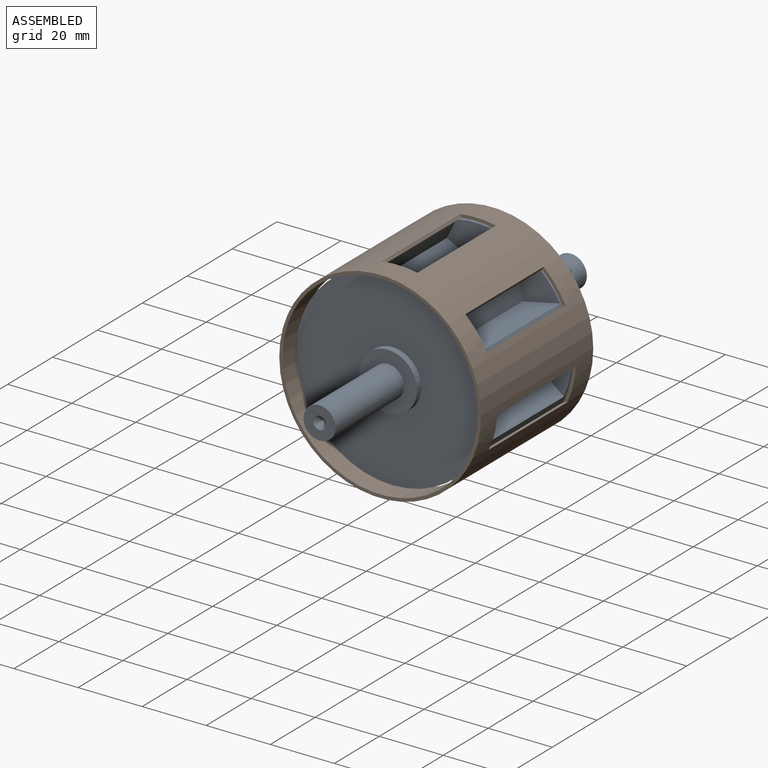
[diagram: assembled view]
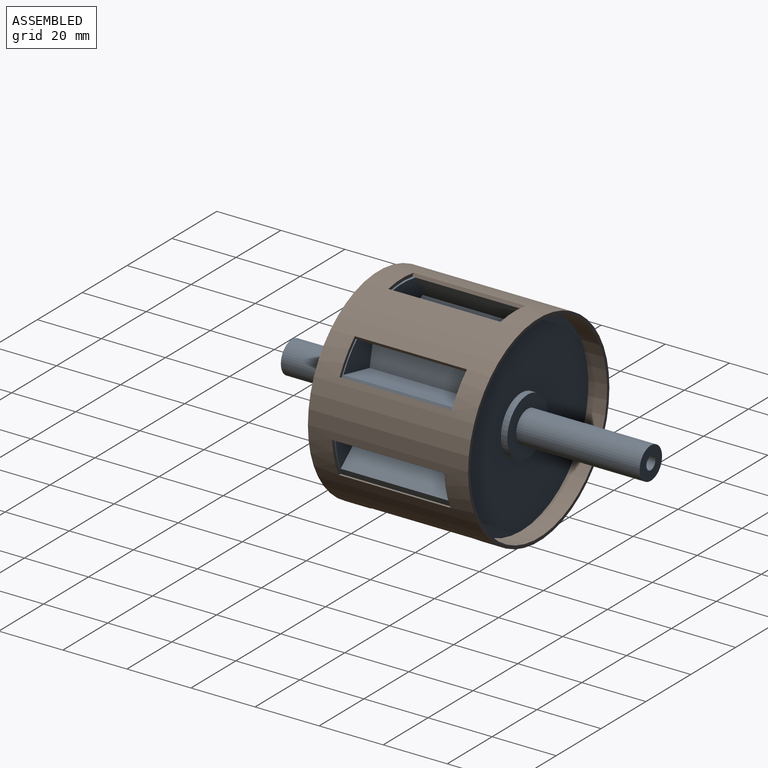
[diagram: assembled view, second angle]
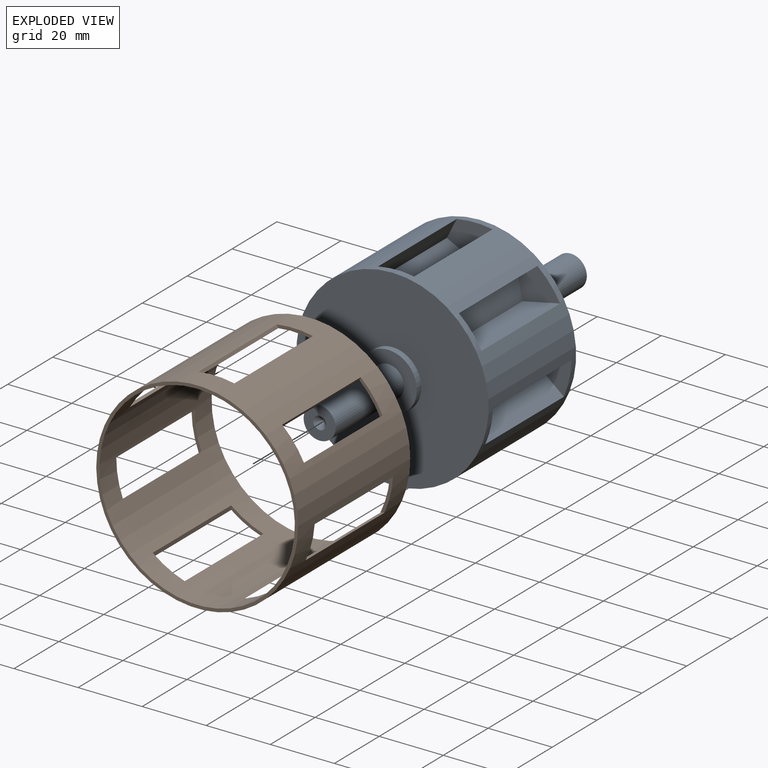
[diagram: exploded view]
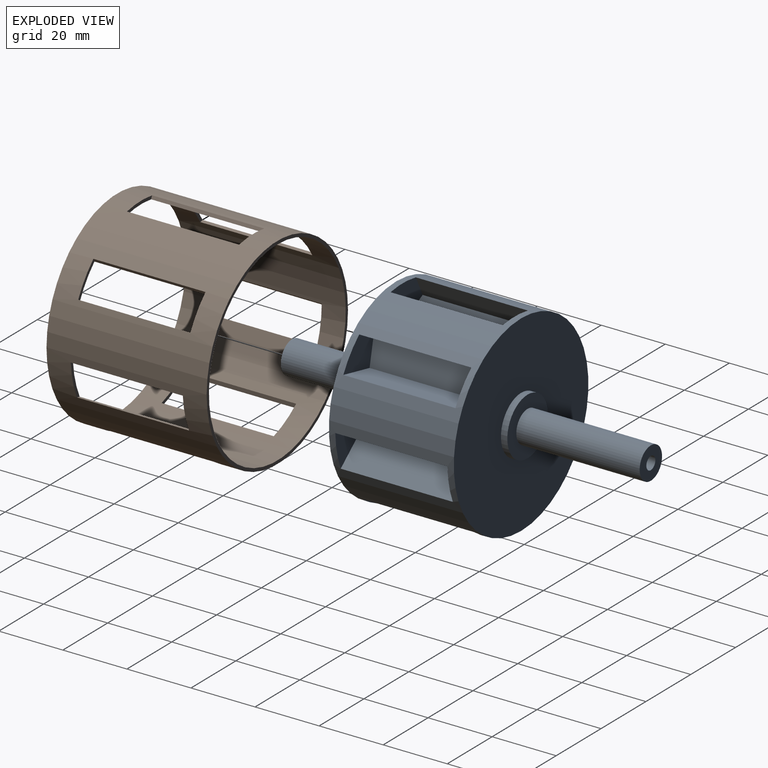
[diagram: exploded view, second angle]
ASSEMBLY  parts=2 mates=2
PART A: 49 faces, bbox 60x112x60 mm
  f0: cylinder r=30mm len=60mm, axis (0,-1,0), area 4583.3mm2, adj f6,f7,f14,f16,f17,f18,f19,f21
  f1: cylinder r=2mm len=10mm, axis (0,-1,0), area 125.7mm2, adj f2,f13
  f2: plane 10x10mm, normal (0,1,0), area 66mm2, adj f1,f3
  f3: cylinder r=5mm len=38.5mm, axis (0,-1,0), area 1209.5mm2, adj f2,f4
  f4: plane 18x18mm, normal (0,1,0), area 175.9mm2, adj f3,f5
  f5: cylinder r=9mm len=18mm, axis (0,-1,0), area 113.1mm2, adj f4,f6
  f6: plane 60x60mm, normal (0,1,0), area 2573mm2, adj f0,f5
  f7: plane 60x60mm, normal (0,-1,0), area 2573mm2, adj f0,f8
  f8: cylinder r=9mm len=18mm, axis (0,-1,0), area 113.1mm2, adj f7,f9
  f9: plane 18x18mm, normal (0,-1,0), area 175.9mm2, adj f8,f10
  f10: cylinder r=5mm len=30.5mm, axis (0,-1,0), area 958.2mm2, adj f9,f11
  f11: plane 10x10mm, normal (0,-1,0), area 66mm2, adj f10,f12
  f12: cone r=0mm half-angle=45deg, axis (0,-1,0), area 17.8mm2, adj f11
  f13: plane 4x4mm, normal (0,1,0), area 12.6mm2, adj f1
  f14: plane 14.29x11.18mm, normal (0,1,0), area 98mm2, adj f0,f15,f17,f18
  f15: plane 35x8.94mm, normal (0.45,0,0.89), area 350mm2, adj f14,f16,f17,f18
  f16: plane 14.29x11.18mm, normal (0,-1,0), area 98mm2, adj f0,f15,f17,f18
  f17: plane 35x10.7mm, normal (-0.89,0,0.45), area 418.7mm2, adj f0,f14,f15,f16
  f18: plane 35x6.13mm, normal (0.89,0,-0.45), area 239.7mm2, adj f0,f14,f15,f16
  f19: plane 15.06x11.95mm, normal (0,1,0), area 98mm2, adj f0,f20,f22,f23
  f20: plane 35x9.07mm, normal (-0.42,0,0.91), area 350mm2, adj f19,f21,f22,f23
  f21: plane 15.06x11.95mm, normal (0,-1,0), area 98mm2, adj f0,f20,f22,f23
  f22: plane 35x10.85mm, normal (-0.91,0,-0.42), area 418.7mm2, adj f0,f19,f20,f21
  f23: plane 35x6.21mm, normal (0.91,0,0.42), area 239.7mm2, adj f0,f19,f20,f21
  f24: plane 12.55x11.62mm, normal (0,1,0), area 98mm2, adj f0,f25,f27,f28
  f25: plane 35x9.72mm, normal (-0.97,0,0.24), area 350mm2, adj f24,f26,f27,f28
  f26: plane 12.55x11.62mm, normal (0,-1,0), area 98mm2, adj f0,f25,f27,f28
  f27: plane 35x11.62mm, normal (-0.24,0,-0.97), area 418.7mm2, adj f0,f24,f25,f26
  f28: plane 35x6.65mm, normal (0.24,0,0.97), area 239.7mm2, adj f0,f24,f25,f26
  f29: plane 15.58x12.1mm, normal (0,1,0), area 98mm2, adj f0,f30,f32,f33
  f30: plane 35x7.91mm, normal (-0.79,0,-0.61), area 350mm2, adj f29,f31,f32,f33
  f31: plane 15.58x12.1mm, normal (0,-1,0), area 98mm2, adj f0,f30,f32,f33
  f32: plane 35x9.46mm, normal (0.61,0,-0.79), area 418.7mm2, adj f0,f29,f30,f31
  f33: plane 35x5.42mm, normal (-0.61,0,0.79), area 239.7mm2, adj f0,f29,f30,f31
  f34: plane 11.96x10.18mm, normal (0,1,0), area 98mm2, adj f0,f35,f37,f38
  f35: plane 35x10mm, normal (-0.01,0,-1), area 350mm2, adj f34,f36,f37,f38
  f36: plane 11.96x10.18mm, normal (0,-1,0), area 98mm2, adj f0,f35,f37,f38
  f37: plane 35x11.96mm, normal (1,0,-0.01), area 418.7mm2, adj f0,f34,f35,f36
  f38: plane 35x6.85mm, normal (-1,0,0.01), area 239.7mm2, adj f0,f34,f35,f36
  f39: plane 15.32x11.64mm, normal (0,1,0), area 98mm2, adj f0,f40,f42,f43
  f40: plane 35x7.73mm, normal (0.77,0,-0.64), area 350mm2, adj f39,f41,f42,f43
  f41: plane 15.32x11.64mm, normal (0,-1,0), area 98mm2, adj f0,f40,f42,f43
  f42: plane 35x9.24mm, normal (0.64,0,0.77), area 418.7mm2, adj f0,f39,f40,f41
  f43: plane 35x5.29mm, normal (-0.64,0,-0.77), area 239.7mm2, adj f0,f39,f40,f41
  f44: plane 13.78x11.21mm, normal (0,1,0), area 98mm2, adj f0,f45,f47,f48
  f45: plane 35x9.78mm, normal (0.98,0,0.21), area 350mm2, adj f44,f46,f47,f48
  f46: plane 13.78x11.21mm, normal (0,-1,0), area 98mm2, adj f0,f45,f47,f48
  f47: plane 35x11.7mm, normal (-0.21,0,0.98), area 418.7mm2, adj f0,f44,f45,f46
  f48: plane 35x6.7mm, normal (0.21,0,-0.98), area 239.7mm2, adj f0,f44,f45,f46
PART B: 32 faces, bbox 63x63x50 mm
  f0: plane 8.94x8.31mm, normal (0,0,-1), area 11.3mm2, adj f1,f2,f24,f25
  f1: plane 35x1.02mm, normal (-0.21,0.98,0), area 36.6mm2, adj f0,f3,f24,f25
  f2: plane 35x1.24mm, normal (0.21,-0.98,0), area 44.4mm2, adj f0,f3,f24,f25
  f3: plane 8.94x8.31mm, normal (0,0,1), area 11.3mm2, adj f1,f2,f24,f25
  f4: plane 11.77x3.22mm, normal (0,0,-1), area 11.3mm2, adj f5,f6,f24,f25
  f5: plane 35x0.81mm, normal (0.64,0.77,0), area 36.6mm2, adj f4,f7,f24,f25
  f6: plane 35x0.98mm, normal (-0.64,-0.77,0), area 44.4mm2, adj f4,f7,f24,f25
  f7: plane 11.77x3.22mm, normal (0,0,1), area 11.3mm2, adj f5,f6,f24,f25
  f8: plane 10.09x6.22mm, normal (0,0,-1), area 11.3mm2, adj f9,f10,f24,f25
  f9: plane 35x1.05mm, normal (1,-0.01,0), area 36.6mm2, adj f8,f11,f24,f25
  f10: plane 35x1.27mm, normal (-1,0.01,0), area 44.4mm2, adj f8,f11,f24,f25
  f11: plane 10.09x6.22mm, normal (0,0,1), area 11.3mm2, adj f9,f10,f24,f25
  f12: plane 11.16x5.43mm, normal (0,0,-1), area 11.3mm2, adj f13,f14,f24,f25
  f13: plane 35x0.83mm, normal (0.61,-0.79,0), area 36.6mm2, adj f12,f15,f24,f25
  f14: plane 35x1mm, normal (-0.61,0.79,0), area 44.4mm2, adj f12,f15,f24,f25
  f15: plane 11.16x5.43mm, normal (0,0,1), area 11.3mm2, adj f13,f14,f24,f25
  f16: plane 11.23x3.82mm, normal (0,0,-1), area 11.3mm2, adj f17,f18,f24,f25
  f17: plane 35x1.02mm, normal (-0.24,-0.97,0), area 36.6mm2, adj f16,f19,f24,f25
  f18: plane 35x1.23mm, normal (0.24,0.97,0), area 44.4mm2, adj f16,f19,f24,f25
  f19: plane 11.23x3.82mm, normal (0,0,1), area 11.3mm2, adj f17,f18,f24,f25
  f20: plane 9.99x7.37mm, normal (0,0,-1), area 11.3mm2, adj f21,f22,f24,f25
  f21: plane 35x0.95mm, normal (-0.91,-0.42,0), area 36.6mm2, adj f20,f23,f24,f25
  f22: plane 35x1.15mm, normal (0.91,0.42,0), area 44.4mm2, adj f20,f23,f24,f25
  f23: plane 9.99x7.37mm, normal (0,0,1), area 11.3mm2, adj f21,f22,f24,f25
  f24: cylinder r=30.5mm len=61mm, axis (0,0,-1), area 6789.9mm2, adj f0,f1,f2,f3,f4,f5,f6,f7
  f25: cylinder r=31.5mm len=63mm, axis (0,0,-1), area 7130.8mm2, adj f0,f1,f2,f3,f4,f5,f6,f7
  f26: plane 63x63mm, normal (0,0,1), area 194.8mm2, adj f24,f25
  f27: plane 63x63mm, normal (0,0,-1), area 194.8mm2, adj f24,f25
  f28: plane 11.79x1.69mm, normal (0,0,-1), area 11.3mm2, adj f24,f25,f30,f31
  f29: plane 11.79x1.69mm, normal (0,0,1), area 11.3mm2, adj f24,f25,f30,f31
  f30: plane 35x1.14mm, normal (0.89,-0.45,0), area 44.4mm2, adj f24,f25,f28,f29
  f31: plane 35x0.94mm, normal (-0.89,0.45,0), area 36.6mm2, adj f24,f25,f28,f29
PLACE A t=(0.07,-0.41,-0.07)mm
PLACE B rot(axis=(-0.66,0.53,0.53),113.4deg) t=(0.07,-0.41,-0.07)mm
MATE cylindrical B.f24 <-> A.f0  axis (0,-1,0) through (0.07,-0.41,-0.07)mm
MATE planar B.f7 <-> A.f44  axis (0,1,0) through (12.52,-17.91,-28.27)mm
